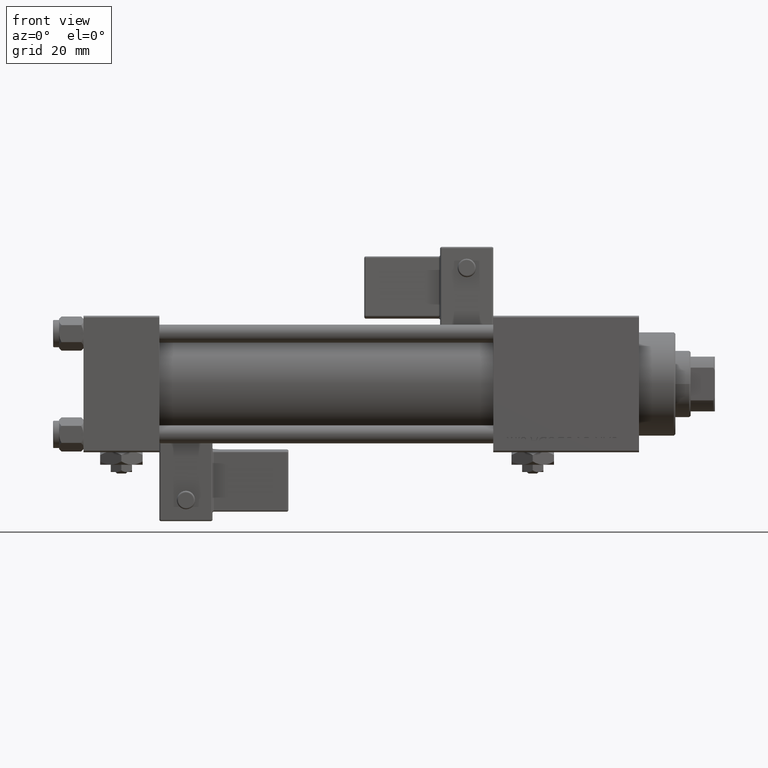
[diagram: clean part render]
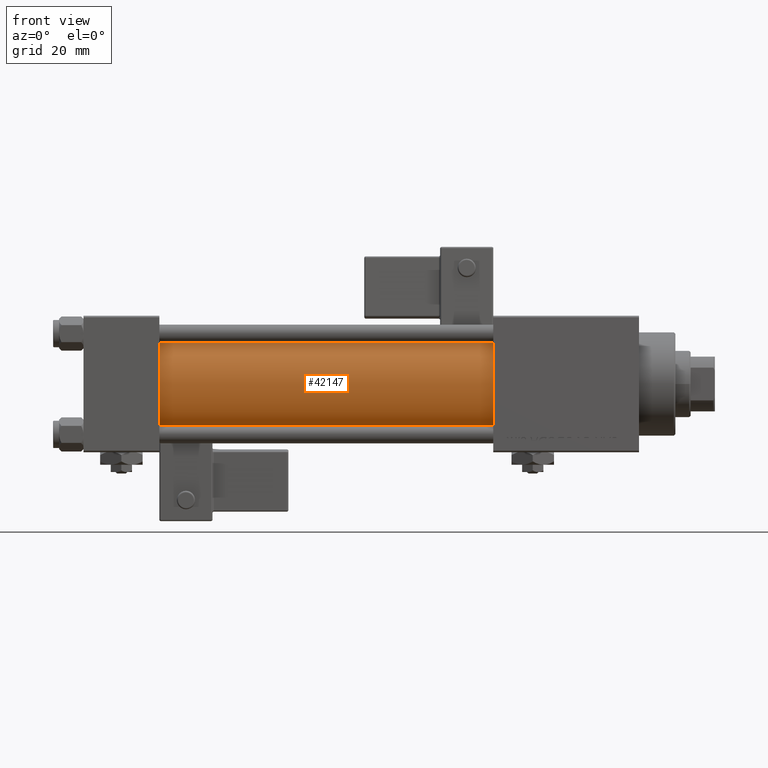
[diagram: same view with one face highlighted and labeled with its STEP entity id]
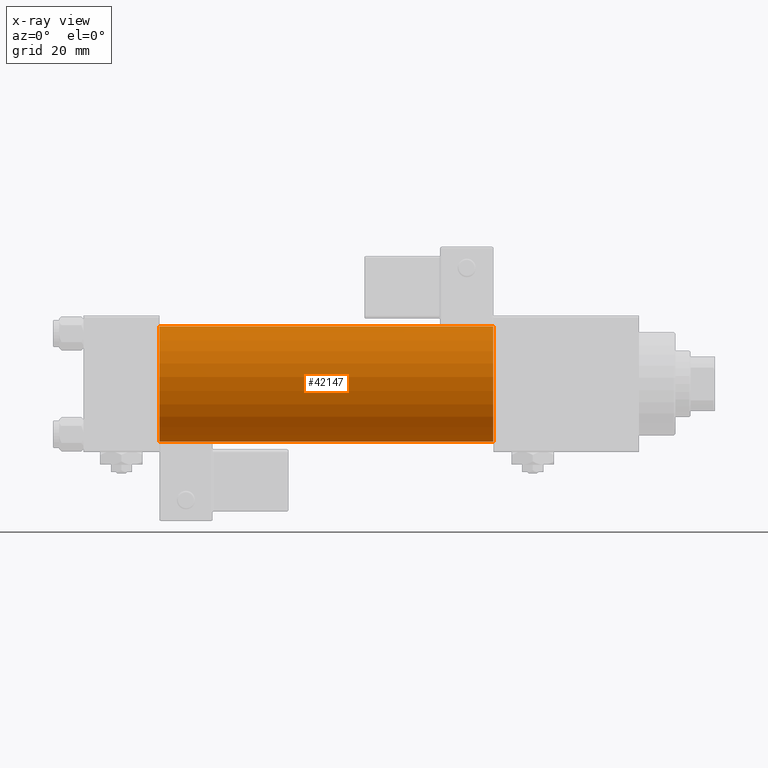
[diagram: x-ray of the same camera — body ghosted, the highlighted face saturated]
A machine part, front view. The second image highlights one B-rep face of the part: STEP entity #42147.
The next image is the same camera in x-ray: the body ghosted, the highlighted face saturated — about 0% of this face is hidden behind the body in this view.
In plain terms, the highlighted cylindrical surface (partial cylindrical patch) has radius 19 mm, axis along (-1, -0, -0).
Its self-contained STEP definition (entity closure, byte-faithful):
#292 = VECTOR ( 'NONE', #2181, 1000.000000000000000 ) ;
#2181 = DIRECTION ( 'NONE',  ( -1.000000000000000000, -0.000000000000000000, -0.000000000000000000 ) ) ;
#3218 = CARTESIAN_POINT ( 'NONE',  ( 135.0000000000000000, -2.602085213965210642E-15, 19.00000000000000000 ) ) ;
#6464 = VERTEX_POINT ( 'NONE', #12869 ) ;
#7992 = LINE ( 'NONE', #3218, #16167 ) ;
#8102 = DIRECTION ( 'NONE',  ( 0.000000000000000000, 0.000000000000000000, -1.000000000000000000 ) ) ;
#8536 = DIRECTION ( 'NONE',  ( -1.000000000000000000, -0.000000000000000000, -0.000000000000000000 ) ) ;
#8889 = EDGE_CURVE ( 'NONE', #41526, #24426, #7992, .T. ) ;
#11570 = CARTESIAN_POINT ( 'NONE',  ( 24.99999999999999289, -2.602085213965210642E-15, 19.00000000000000000 ) ) ;
#12500 = FACE_OUTER_BOUND ( 'NONE', #53429, .T. ) ;
#12869 = CARTESIAN_POINT ( 'NONE',  ( 24.99999999999999289, -2.752562955852396712E-16, -19.00000000000000000 ) ) ;
#15025 = VERTEX_POINT ( 'NONE', #53488 ) ;
#16015 = CARTESIAN_POINT ( 'NONE',  ( 24.99999999999999289, -2.602085213965210642E-15, 0.000000000000000000 ) ) ;
#16167 = VECTOR ( 'NONE', #50882, 1000.000000000000000 ) ;
#19310 = ORIENTED_EDGE ( 'NONE', *, *, #29283, .F. ) ;
#22053 = AXIS2_PLACEMENT_3D ( 'NONE', #16015, #34312, #33746 ) ;
#22389 = EDGE_CURVE ( 'NONE', #24426, #6464, #46378, .T. ) ;
#24426 = VERTEX_POINT ( 'NONE', #11570 ) ;
#24661 = AXIS2_PLACEMENT_3D ( 'NONE', #47187, #8536, #40135 ) ;
#27027 = CARTESIAN_POINT ( 'NONE',  ( 135.0000000000000000, -2.602085213965210642E-15, 19.00000000000000000 ) ) ;
#28896 = CIRCLE ( 'NONE', #32468, 19.00000000000000000 ) ;
#29283 = EDGE_CURVE ( 'NONE', #41526, #15025, #28896, .T. ) ;
#29727 = CYLINDRICAL_SURFACE ( 'NONE', #24661, 19.00000000000000000 ) ;
#29993 = ORIENTED_EDGE ( 'NONE', *, *, #8889, .T. ) ;
#32468 = AXIS2_PLACEMENT_3D ( 'NONE', #38564, #39118, #8102 ) ;
#33746 = DIRECTION ( 'NONE',  ( 0.000000000000000000, 0.000000000000000000, 1.000000000000000000 ) ) ;
#34312 = DIRECTION ( 'NONE',  ( 1.000000000000000000, -0.000000000000000000, 0.000000000000000000 ) ) ;
#36601 = LINE ( 'NONE', #45070, #292 ) ;
#38564 = CARTESIAN_POINT ( 'NONE',  ( 135.0000000000000000, -2.602085213965210642E-15, 0.000000000000000000 ) ) ;
#39118 = DIRECTION ( 'NONE',  ( 1.000000000000000000, 0.000000000000000000, 0.000000000000000000 ) ) ;
#39127 = ORIENTED_EDGE ( 'NONE', *, *, #41480, .F. ) ;
#40135 = DIRECTION ( 'NONE',  ( 0.000000000000000000, 0.000000000000000000, 1.000000000000000000 ) ) ;
#41480 = EDGE_CURVE ( 'NONE', #15025, #6464, #36601, .T. ) ;
#41526 = VERTEX_POINT ( 'NONE', #27027 ) ;
#42147 = ADVANCED_FACE ( 'NONE', ( #12500 ), #29727, .T. ) ;
#45070 = CARTESIAN_POINT ( 'NONE',  ( 135.0000000000000000, -2.752562955852396712E-16, -19.00000000000000000 ) ) ;
#46378 = CIRCLE ( 'NONE', #22053, 19.00000000000000000 ) ;
#47187 = CARTESIAN_POINT ( 'NONE',  ( 135.0000000000000000, -2.602085213965210642E-15, 0.000000000000000000 ) ) ;
#50882 = DIRECTION ( 'NONE',  ( -1.000000000000000000, -0.000000000000000000, -0.000000000000000000 ) ) ;
#53429 = EDGE_LOOP ( 'NONE', ( #39127, #19310, #29993, #55279 ) ) ;
#53488 = CARTESIAN_POINT ( 'NONE',  ( 135.0000000000000000, -2.752562955852396712E-16, -19.00000000000000000 ) ) ;
#55279 = ORIENTED_EDGE ( 'NONE', *, *, #22389, .T. ) ;